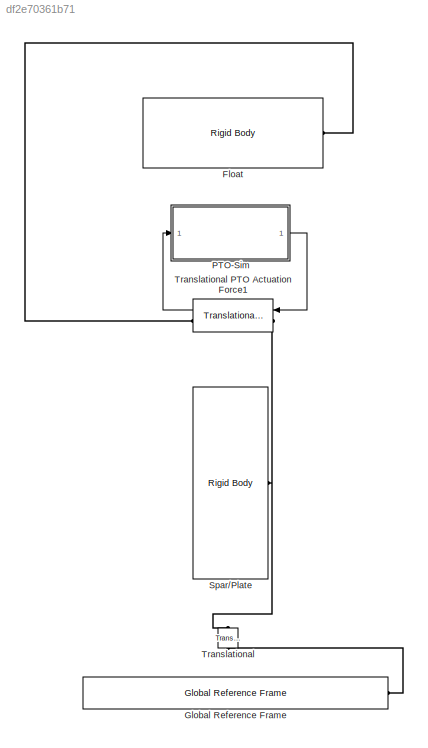
MODEL slx_df2e70361b71
KIND model
CONFIG AbsTol = auto
CONFIG EnableMultiTasking = on
CONFIG FixedStep = 0.01
CONFIG MaxStep = 0.01
CONFIG MinStep = auto
CONFIG RelTol = 1e-3
CONFIG SampleTimeConstraint = Unconstrained
CONFIG SolverName = ode4
CONFIG StartTime = 0
CONFIG StopTime = 400
BLOCK [Reference] Float  REF=WECSim_Lib_Body_Elements/Rigid Body
  AttributesFormatString = %<body>
  Ports = [0, 0, 0, 0, 0, 0, 1]
  SourceBlock = WECSim_Lib_Body_Elements/Rigid Body
  SourceType = Rigid Body
BLOCK [Reference] Global Reference Frame  REF=WECSim_Lib_Frames/Global Reference Frame
  Ports = [0, 0, 0, 0, 0, 0, 1]
  SourceBlock = WECSim_Lib_Frames/Global Reference Frame
  SourceType = Frames
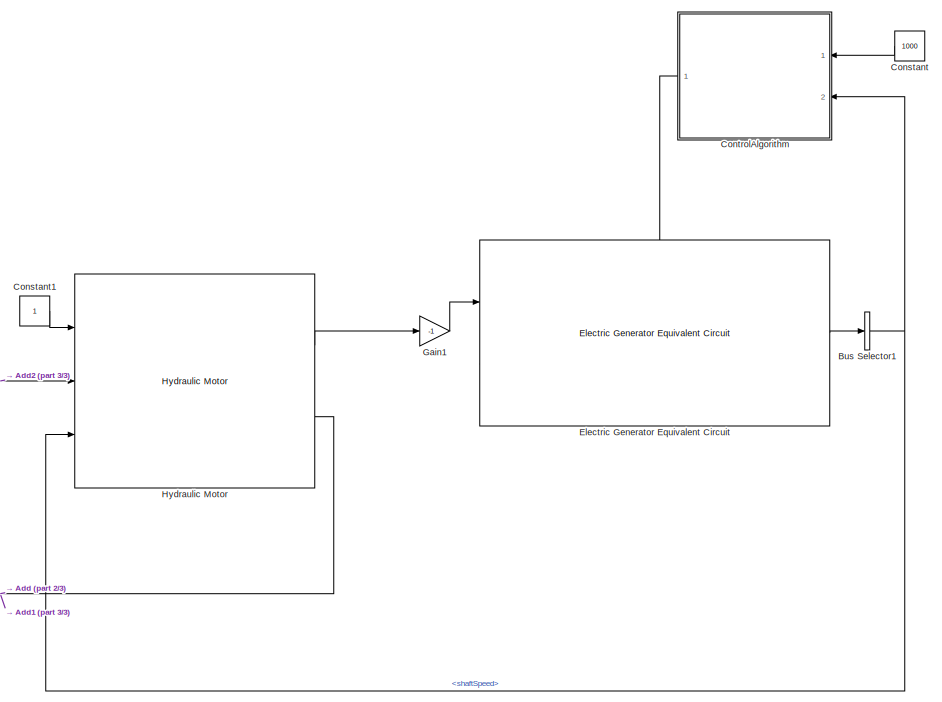
[diagram: PTO-Sim - part 1/3, middle right region]
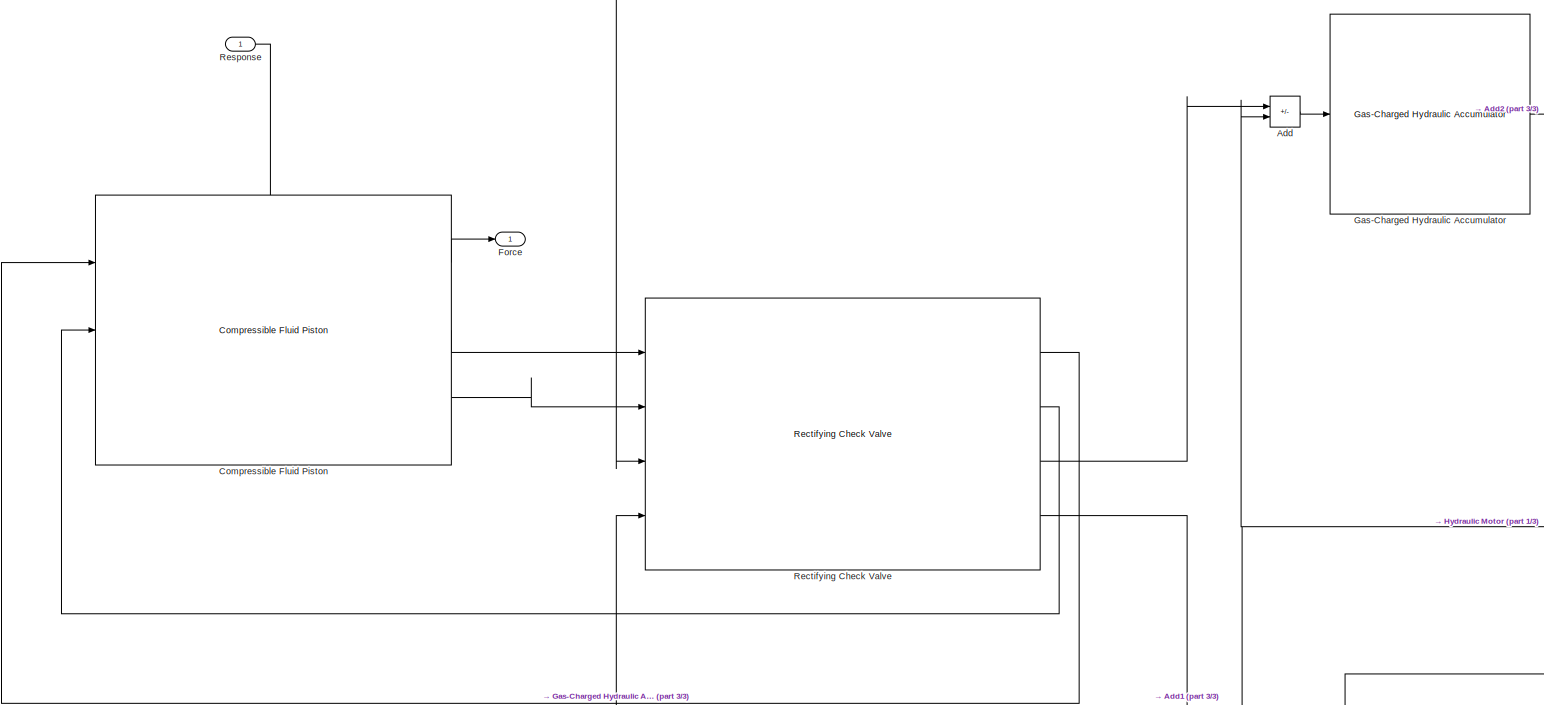
[diagram: PTO-Sim - part 2/3, middle left region]
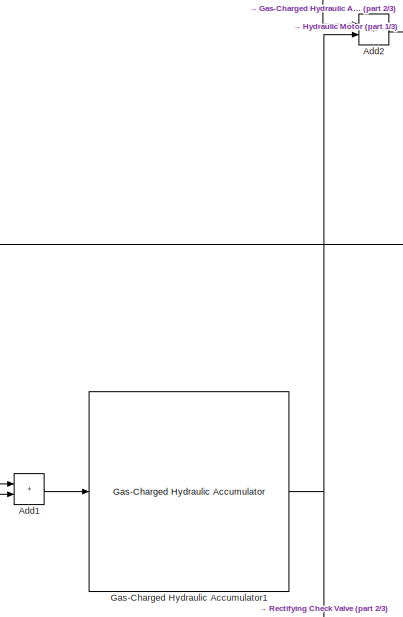
[diagram: PTO-Sim - part 3/3, central region]
BLOCK [SubSystem] PTO-Sim
  Ports = [1, 1]
BLOCK [Sum] PTO-Sim/Add
  IconShape = rectangular
  Inputs = +-
  Ports = [2, 1]
BLOCK [Sum] PTO-Sim/Add1
  IconShape = rectangular
  Ports = [2, 1]
BLOCK [Sum] PTO-Sim/Add2
  IconShape = rectangular
  Inputs = +-
  Ports = [2, 1]
BLOCK [BusSelector] PTO-Sim/Bus Selector1
  OutputSignals = shaftSpeed
  Ports = [1, 1]
BLOCK [Reference] PTO-Sim/Compressible Fluid Piston  REF=WECSim_Lib_PTOSim/Hydraulic/Compressible Fluid Piston
  Ports = [3, 3]
  SourceBlock = WECSim_Lib_PTOSim/Hydraulic/Compressible Fluid Piston
BLOCK [Constant] PTO-Sim/Constant
  NameLocation = top
  Value = 1000
BLOCK [Constant] PTO-Sim/Constant1
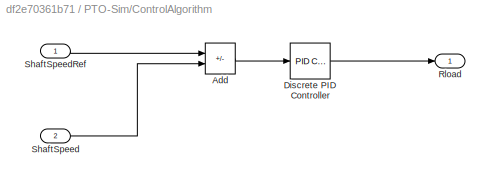
BLOCK [SubSystem] PTO-Sim/ControlAlgorithm
  NameLocation = top
  Ports = [2, 1]
BLOCK [Sum] PTO-Sim/ControlAlgorithm/Add
  IconShape = rectangular
  Inputs = +-
  Ports = [2, 1]
BLOCK [Reference] PTO-Sim/ControlAlgorithm/Discrete PID Controller  REF=pid_lib/PID Controller
  Ports = [1, 1]
  SourceBlock = pid_lib/PID Controller
  SourceType = PID 1dof
BLOCK [Outport] PTO-Sim/ControlAlgorithm/Rload
BLOCK [Inport] PTO-Sim/ControlAlgorithm/ShaftSpeed
  Port = 2
BLOCK [Inport] PTO-Sim/ControlAlgorithm/ShaftSpeedRef
BLOCK [Reference] PTO-Sim/Electric Generator Equivalent Circuit  REF=WECSim_Lib_PTOSim/Electric/Electric Generator Equivalent Circuit
  Ports = [2, 1]
  SourceBlock = WECSim_Lib_PTOSim/Electric/Electric Generator Equivalent Circuit
BLOCK [Outport] PTO-Sim/Force
BLOCK [Gain] PTO-Sim/Gain1
  Gain = -1
BLOCK [Reference] PTO-Sim/Gas-Charged Hydraulic Accumulator  REF=WECSim_Lib_PTOSim/Hydraulic/Gas-Charged Hydraulic Accumulator
  Ports = [1, 1]
  SourceBlock = WECSim_Lib_PTOSim/Hydraulic/Gas-Charged Hydraulic Accumulator
BLOCK [Reference] PTO-Sim/Gas-Charged Hydraulic Accumulator1  REF=WECSim_Lib_PTOSim/Hydraulic/Gas-Charged Hydraulic Accumulator
  Ports = [1, 1]
  SourceBlock = WECSim_Lib_PTOSim/Hydraulic/Gas-Charged Hydraulic Accumulator
BLOCK [Reference] PTO-Sim/Hydraulic Motor  REF=WECSim_Lib_PTOSim/Hydraulic/Hydraulic Motor
  Ports = [3, 2]
  SourceBlock = WECSim_Lib_PTOSim/Hydraulic/Hydraulic Motor
BLOCK [Reference] PTO-Sim/Rectifying Check Valve  REF=WECSim_Lib_PTOSim/Hydraulic/Rectifying Check Valve
  Ports = [4, 4]
  SourceBlock = WECSim_Lib_PTOSim/Hydraulic/Rectifying Check Valve
BLOCK [Inport] PTO-Sim/Response
BLOCK [Reference] Spar//Plate  REF=WECSim_Lib_Body_Elements/Rigid Body
  AttributesFormatString = %<body>
  Ports = [0, 0, 0, 0, 0, 0, 1]
  SourceBlock = WECSim_Lib_Body_Elements/Rigid Body
  SourceType = Rigid Body
BLOCK [Reference] Translational  REF=WECSim_Lib_Constraints/Translational
  AttributesFormatString = %<constraint>
  NameLocation = right
  Ports = [0, 0, 0, 0, 0, 1, 1]
  SourceBlock = WECSim_Lib_Constraints/Translational
  SourceType = Constraints
BLOCK [Reference] Translational PTO Actuation Force1  REF=WECSim_Lib_PTOs/Translational PTO
Actuation Force
  AttributesFormatString = %<pto>
  NameLocation = top
  Ports = [1, 1, 0, 0, 0, 1, 1]
  SourceBlock = WECSim_Lib_PTOs/Translational PTO\nActuation Force
  SourceType = PTO
LINE PTO-Sim/Add1:1 -> PTO-Sim/Gas-Charged Hydraulic Accumulator1:1
LINE PTO-Sim/Add2:1 -> PTO-Sim/Hydraulic Motor:2
LINE PTO-Sim/Add:1 -> PTO-Sim/Gas-Charged Hydraulic Accumulator:1
NET PTO-Sim/Bus Selector1:1 -> PTO-Sim/ControlAlgorithm:2, PTO-Sim/Hydraulic Motor:3
LINE PTO-Sim/Compressible Fluid Piston:1 -> PTO-Sim/Force:1
LINE PTO-Sim/Compressible Fluid Piston:2 -> PTO-Sim/Rectifying Check Valve:1
LINE PTO-Sim/Compressible Fluid Piston:3 -> PTO-Sim/Rectifying Check Valve:2
LINE PTO-Sim/Constant1:1 -> PTO-Sim/Hydraulic Motor:1
LINE PTO-Sim/Constant:1 -> PTO-Sim/ControlAlgorithm:1
LINE PTO-Sim/ControlAlgorithm/Add:1 -> PTO-Sim/ControlAlgorithm/Discrete PID Controller:1
LINE PTO-Sim/ControlAlgorithm/Discrete PID Controller:1 -> PTO-Sim/ControlAlgorithm/Rload:1
LINE PTO-Sim/ControlAlgorithm/ShaftSpeed:1 -> PTO-Sim/ControlAlgorithm/Add:2
LINE PTO-Sim/ControlAlgorithm/ShaftSpeedRef:1 -> PTO-Sim/ControlAlgorithm/Add:1
LINE PTO-Sim/ControlAlgorithm:1 -> PTO-Sim/Electric Generator Equivalent Circuit:2
LINE PTO-Sim/Electric Generator Equivalent Circuit:1 -> PTO-Sim/Bus Selector1:1
LINE PTO-Sim/Gain1:1 -> PTO-Sim/Electric Generator Equivalent Circuit:1
NET PTO-Sim/Gas-Charged Hydraulic Accumulator1:1 -> PTO-Sim/Add2:2, PTO-Sim/Rectifying Check Valve:4
NET PTO-Sim/Gas-Charged Hydraulic Accumulator:1 -> PTO-Sim/Add2:1, PTO-Sim/Rectifying Check Valve:3
LINE PTO-Sim/Hydraulic Motor:1 -> PTO-Sim/Gain1:1
NET PTO-Sim/Hydraulic Motor:2 -> PTO-Sim/Add1:1, PTO-Sim/Add:2
LINE PTO-Sim/Rectifying Check Valve:1 -> PTO-Sim/Compressible Fluid Piston:1
LINE PTO-Sim/Rectifying Check Valve:2 -> PTO-Sim/Compressible Fluid Piston:2
LINE PTO-Sim/Rectifying Check Valve:3 -> PTO-Sim/Add:1
LINE PTO-Sim/Rectifying Check Valve:4 -> PTO-Sim/Add1:2
LINE PTO-Sim/Response:1 -> PTO-Sim/Compressible Fluid Piston:3
LINE PTO-Sim:1 -> Translational PTO Actuation Force1:1
LINE Translational PTO Actuation Force1:1 -> PTO-Sim:1
PLINE Float:RConn1 -- Translational PTO Actuation Force1:RConn1
PLINE Global Reference Frame:RConn1 -- Translational:LConn1
PNET net1: Spar//Plate:RConn1 -- Translational PTO Actuation Force1:LConn1 -- Translational:RConn1
note: NET lines group one-source signal fan-out (src -> all destinations, sorted); 1:1 wires keep LINE; PNET lines group multi-terminal physical nets as a canonical sorted terminal list (undirected conserving connections); 2-terminal nets keep the pairwise PLINE form
